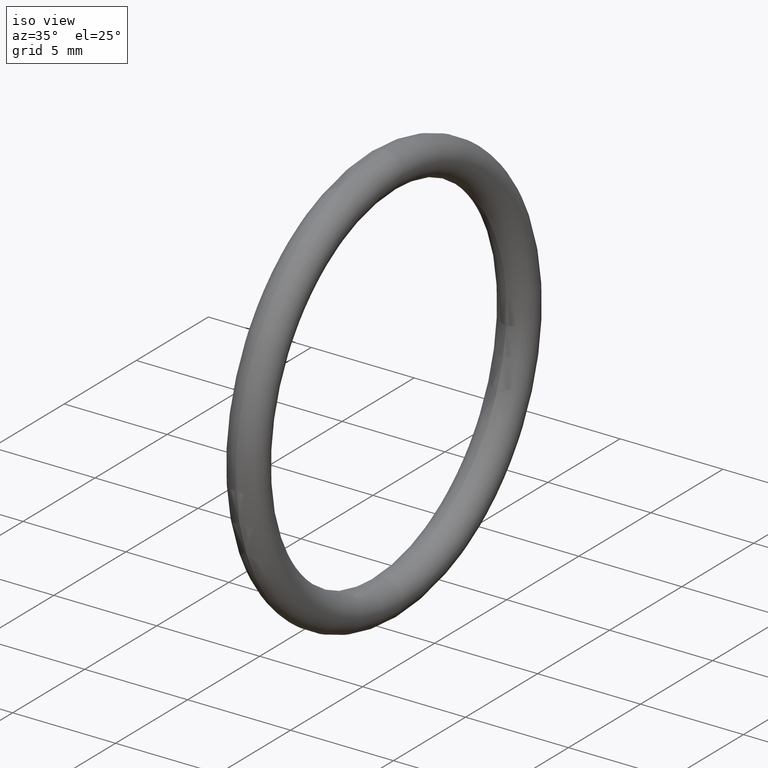
[diagram: clean part render]
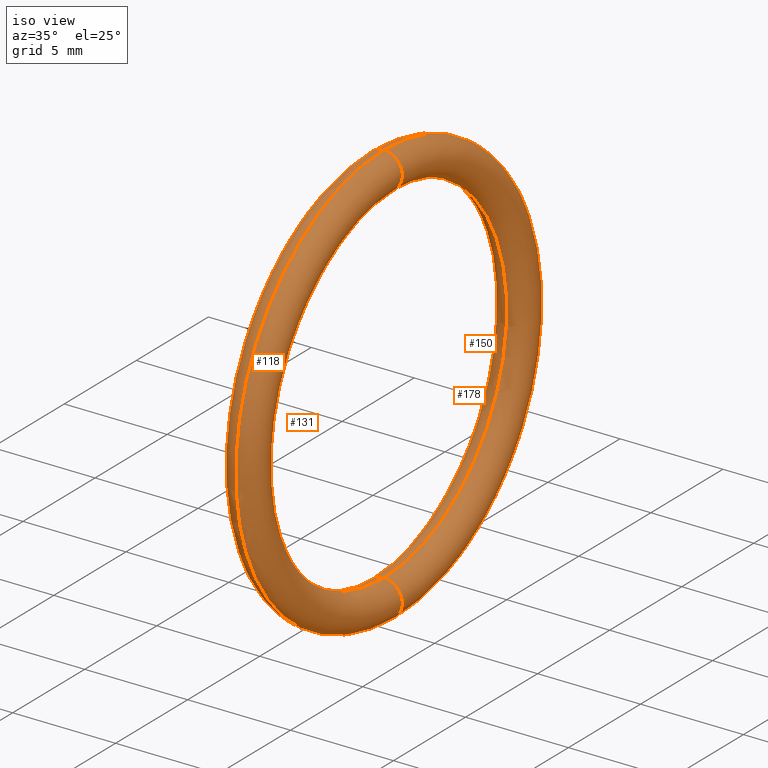
[diagram: same view with one multi-face feature highlighted, each face labeled with its STEP entity id]
A machine part, iso view. The highlighted faces form ONE feature: a constant-radius fillet chain: 4 tangent blend faces with common blend radius 0.889 mm. The faces share edges in the B-rep.
Their STEP definitions:
[1] entity #178 (Torus):
#12 = CARTESIAN_POINT ( 'NONE',  ( 0.1000000000000000500, 0.0000000000000000000, 0.0000000000000000000 ) ) ;
#17 = FACE_OUTER_BOUND ( 'NONE', #119, .T. ) ;
#55 = DIRECTION ( 'NONE',  ( 0.0000000000000000000, -1.224646799147352500E-016, 1.000000000000000000 ) ) ;
#56 = DIRECTION ( 'NONE',  ( 0.0000000000000000000, 1.000000000000000000, 1.224646799147353200E-016 ) ) ;
#57 = CARTESIAN_POINT ( 'NONE',  ( 0.1000000000000000500, 4.531193156845207300E-017, -0.3700000000000000000 ) ) ;
#58 = AXIS2_PLACEMENT_3D ( 'NONE', #57, #56, #55 ) ;
#59 = CIRCLE ( 'NONE', #58, 0.03500000000000003800 ) ;
#60 = CARTESIAN_POINT ( 'NONE',  ( 0.1000000000000000500, 0.0000000000000000000, 0.4050000000000000300 ) ) ;
#64 = CARTESIAN_POINT ( 'NONE',  ( 0.1000000000000000500, 0.0000000000000000000, 0.0000000000000000000 ) ) ;
#65 = AXIS2_PLACEMENT_3D ( 'NONE', #64, #78, #77 ) ;
#66 = CIRCLE ( 'NONE', #65, 0.4050000000000000300 ) ;
#77 = DIRECTION ( 'NONE',  ( 0.0000000000000000000, 0.0000000000000000000, 1.000000000000000000 ) ) ;
#78 = DIRECTION ( 'NONE',  ( -1.000000000000000000, 0.0000000000000000000, 0.0000000000000000000 ) ) ;
#86 = ORIENTED_EDGE ( 'NONE', *, *, #122, .T. ) ;
#91 = CARTESIAN_POINT ( 'NONE',  ( 0.1000000000000000500, 0.0000000000000000000, 0.3349999999999999600 ) ) ;
#92 = CARTESIAN_POINT ( 'NONE',  ( 0.1000000000000000500, 4.102566777143633400E-017, -0.3349999999999999600 ) ) ;
#93 = CARTESIAN_POINT ( 'NONE',  ( 0.1000000000000000500, 4.959819536546780600E-017, -0.4050000000000000300 ) ) ;
#94 = VERTEX_POINT ( 'NONE', #93 ) ;
#95 = VERTEX_POINT ( 'NONE', #92 ) ;
#96 = EDGE_CURVE ( 'NONE', #181, #120, #132, .T. ) ;
#110 = DIRECTION ( 'NONE',  ( 0.0000000000000000000, 0.0000000000000000000, -1.000000000000000000 ) ) ;
#111 = DIRECTION ( 'NONE',  ( 0.0000000000000000000, -1.000000000000000000, 0.0000000000000000000 ) ) ;
#112 = CARTESIAN_POINT ( 'NONE',  ( 0.1000000000000000500, 0.0000000000000000000, 0.3700000000000000000 ) ) ;
#113 = AXIS2_PLACEMENT_3D ( 'NONE', #112, #111, #110 ) ;
#116 = EDGE_CURVE ( 'NONE', #120, #95, #193, .T. ) ;
#117 = ORIENTED_EDGE ( 'NONE', *, *, #183, .T. ) ;
#119 = EDGE_LOOP ( 'NONE', ( #124, #86, #117, #152 ) ) ;
#120 = VERTEX_POINT ( 'NONE', #91 ) ;
#122 = EDGE_CURVE ( 'NONE', #181, #94, #66, .T. ) ;
#124 = ORIENTED_EDGE ( 'NONE', *, *, #96, .F. ) ;
#132 = CIRCLE ( 'NONE', #113, 0.03500000000000003800 ) ;
#137 = DIRECTION ( 'NONE',  ( 0.0000000000000000000, 0.0000000000000000000, 1.000000000000000000 ) ) ;
#138 = DIRECTION ( 'NONE',  ( -1.000000000000000000, 0.0000000000000000000, 0.0000000000000000000 ) ) ;
#139 = AXIS2_PLACEMENT_3D ( 'NONE', #12, #138, #137 ) ;
#140 = TOROIDAL_SURFACE ( 'NONE', #139, 0.3700000000000000000, 0.03500000000000000300 ) ;
#152 = ORIENTED_EDGE ( 'NONE', *, *, #116, .F. ) ;
#178 = ADVANCED_FACE ( 'NONE', ( #17 ), #140, .T. ) ;
#181 = VERTEX_POINT ( 'NONE', #60 ) ;
#183 = EDGE_CURVE ( 'NONE', #94, #95, #59, .T. ) ;
#189 = DIRECTION ( 'NONE',  ( 0.0000000000000000000, 0.0000000000000000000, 1.000000000000000000 ) ) ;
#190 = DIRECTION ( 'NONE',  ( -1.000000000000000000, 0.0000000000000000000, 0.0000000000000000000 ) ) ;
#191 = CARTESIAN_POINT ( 'NONE',  ( 0.1000000000000000500, 0.0000000000000000000, 0.0000000000000000000 ) ) ;
#192 = AXIS2_PLACEMENT_3D ( 'NONE', #191, #190, #189 ) ;
#193 = CIRCLE ( 'NONE', #192, 0.3349999999999999600 ) ;
[2] entity #150 (Torus):
#13 = DIRECTION ( 'NONE',  ( 0.0000000000000000000, -1.224646799147352500E-016, 1.000000000000000000 ) ) ;
#14 = DIRECTION ( 'NONE',  ( 0.0000000000000000000, 1.000000000000000000, 1.224646799147353200E-016 ) ) ;
#15 = CARTESIAN_POINT ( 'NONE',  ( 0.1000000000000000500, 4.531193156845207300E-017, -0.3700000000000000000 ) ) ;
#16 = AXIS2_PLACEMENT_3D ( 'NONE', #15, #14, #13 ) ;
#60 = CARTESIAN_POINT ( 'NONE',  ( 0.1000000000000000500, 0.0000000000000000000, 0.4050000000000000300 ) ) ;
#64 = CARTESIAN_POINT ( 'NONE',  ( 0.1000000000000000500, 0.0000000000000000000, 0.0000000000000000000 ) ) ;
#65 = AXIS2_PLACEMENT_3D ( 'NONE', #64, #78, #77 ) ;
#66 = CIRCLE ( 'NONE', #65, 0.4050000000000000300 ) ;
#68 = DIRECTION ( 'NONE',  ( 0.0000000000000000000, 0.0000000000000000000, -1.000000000000000000 ) ) ;
#69 = DIRECTION ( 'NONE',  ( 0.0000000000000000000, -1.000000000000000000, 0.0000000000000000000 ) ) ;
#70 = AXIS2_PLACEMENT_3D ( 'NONE', #145, #69, #68 ) ;
#71 = CIRCLE ( 'NONE', #70, 0.03500000000000003800 ) ;
#72 = CIRCLE ( 'NONE', #16, 0.03500000000000003800 ) ;
#75 = FACE_OUTER_BOUND ( 'NONE', #85, .T. ) ;
#77 = DIRECTION ( 'NONE',  ( 0.0000000000000000000, 0.0000000000000000000, 1.000000000000000000 ) ) ;
#78 = DIRECTION ( 'NONE',  ( -1.000000000000000000, 0.0000000000000000000, 0.0000000000000000000 ) ) ;
#85 = EDGE_LOOP ( 'NONE', ( #151, #155, #182, #157 ) ) ;
#91 = CARTESIAN_POINT ( 'NONE',  ( 0.1000000000000000500, 0.0000000000000000000, 0.3349999999999999600 ) ) ;
#92 = CARTESIAN_POINT ( 'NONE',  ( 0.1000000000000000500, 4.102566777143633400E-017, -0.3349999999999999600 ) ) ;
#93 = CARTESIAN_POINT ( 'NONE',  ( 0.1000000000000000500, 4.959819536546780600E-017, -0.4050000000000000300 ) ) ;
#94 = VERTEX_POINT ( 'NONE', #93 ) ;
#95 = VERTEX_POINT ( 'NONE', #92 ) ;
#97 = TOROIDAL_SURFACE ( 'NONE', #149, 0.3700000000000000000, 0.03500000000000000300 ) ;
#116 = EDGE_CURVE ( 'NONE', #120, #95, #193, .T. ) ;
#120 = VERTEX_POINT ( 'NONE', #91 ) ;
#122 = EDGE_CURVE ( 'NONE', #181, #94, #66, .T. ) ;
#145 = CARTESIAN_POINT ( 'NONE',  ( 0.1000000000000000500, 0.0000000000000000000, 0.3700000000000000000 ) ) ;
#146 = DIRECTION ( 'NONE',  ( 0.0000000000000000000, 0.0000000000000000000, 1.000000000000000000 ) ) ;
#147 = DIRECTION ( 'NONE',  ( -1.000000000000000000, 0.0000000000000000000, 0.0000000000000000000 ) ) ;
#148 = CARTESIAN_POINT ( 'NONE',  ( 0.1000000000000000500, 0.0000000000000000000, 0.0000000000000000000 ) ) ;
#149 = AXIS2_PLACEMENT_3D ( 'NONE', #148, #147, #146 ) ;
#150 = ADVANCED_FACE ( 'NONE', ( #75 ), #97, .T. ) ;
#151 = ORIENTED_EDGE ( 'NONE', *, *, #122, .F. ) ;
#155 = ORIENTED_EDGE ( 'NONE', *, *, #156, .F. ) ;
#156 = EDGE_CURVE ( 'NONE', #120, #181, #71, .T. ) ;
#157 = ORIENTED_EDGE ( 'NONE', *, *, #158, .T. ) ;
#158 = EDGE_CURVE ( 'NONE', #95, #94, #72, .T. ) ;
#181 = VERTEX_POINT ( 'NONE', #60 ) ;
#182 = ORIENTED_EDGE ( 'NONE', *, *, #116, .T. ) ;
#189 = DIRECTION ( 'NONE',  ( 0.0000000000000000000, 0.0000000000000000000, 1.000000000000000000 ) ) ;
#190 = DIRECTION ( 'NONE',  ( -1.000000000000000000, 0.0000000000000000000, 0.0000000000000000000 ) ) ;
#191 = CARTESIAN_POINT ( 'NONE',  ( 0.1000000000000000500, 0.0000000000000000000, 0.0000000000000000000 ) ) ;
#192 = AXIS2_PLACEMENT_3D ( 'NONE', #191, #190, #189 ) ;
#193 = CIRCLE ( 'NONE', #192, 0.3349999999999999600 ) ;
[3] entity #131 (Torus):
#13 = DIRECTION ( 'NONE',  ( 0.0000000000000000000, -1.224646799147352500E-016, 1.000000000000000000 ) ) ;
#14 = DIRECTION ( 'NONE',  ( 0.0000000000000000000, 1.000000000000000000, 1.224646799147353200E-016 ) ) ;
#15 = CARTESIAN_POINT ( 'NONE',  ( 0.1000000000000000500, 4.531193156845207300E-017, -0.3700000000000000000 ) ) ;
#16 = AXIS2_PLACEMENT_3D ( 'NONE', #15, #14, #13 ) ;
#60 = CARTESIAN_POINT ( 'NONE',  ( 0.1000000000000000500, 0.0000000000000000000, 0.4050000000000000300 ) ) ;
#61 = DIRECTION ( 'NONE',  ( 0.0000000000000000000, 0.0000000000000000000, 1.000000000000000000 ) ) ;
#62 = DIRECTION ( 'NONE',  ( -1.000000000000000000, 0.0000000000000000000, 0.0000000000000000000 ) ) ;
#63 = CARTESIAN_POINT ( 'NONE',  ( 0.1000000000000000500, 0.0000000000000000000, 0.0000000000000000000 ) ) ;
#67 = FACE_OUTER_BOUND ( 'NONE', #121, .T. ) ;
#68 = DIRECTION ( 'NONE',  ( 0.0000000000000000000, 0.0000000000000000000, -1.000000000000000000 ) ) ;
#69 = DIRECTION ( 'NONE',  ( 0.0000000000000000000, -1.000000000000000000, 0.0000000000000000000 ) ) ;
#70 = AXIS2_PLACEMENT_3D ( 'NONE', #145, #69, #68 ) ;
#71 = CIRCLE ( 'NONE', #70, 0.03500000000000003800 ) ;
#72 = CIRCLE ( 'NONE', #16, 0.03500000000000003800 ) ;
#73 = DIRECTION ( 'NONE',  ( 0.0000000000000000000, 0.0000000000000000000, 1.000000000000000000 ) ) ;
#74 = TOROIDAL_SURFACE ( 'NONE', #100, 0.3700000000000000000, 0.03500000000000000300 ) ;
#76 = CARTESIAN_POINT ( 'NONE',  ( 0.1000000000000000500, 0.0000000000000000000, 0.0000000000000000000 ) ) ;
#91 = CARTESIAN_POINT ( 'NONE',  ( 0.1000000000000000500, 0.0000000000000000000, 0.3349999999999999600 ) ) ;
#92 = CARTESIAN_POINT ( 'NONE',  ( 0.1000000000000000500, 4.102566777143633400E-017, -0.3349999999999999600 ) ) ;
#93 = CARTESIAN_POINT ( 'NONE',  ( 0.1000000000000000500, 4.959819536546780600E-017, -0.4050000000000000300 ) ) ;
#94 = VERTEX_POINT ( 'NONE', #93 ) ;
#95 = VERTEX_POINT ( 'NONE', #92 ) ;
#98 = DIRECTION ( 'NONE',  ( 0.0000000000000000000, 0.0000000000000000000, 1.000000000000000000 ) ) ;
#99 = DIRECTION ( 'NONE',  ( -1.000000000000000000, 0.0000000000000000000, 0.0000000000000000000 ) ) ;
#100 = AXIS2_PLACEMENT_3D ( 'NONE', #76, #99, #98 ) ;
#120 = VERTEX_POINT ( 'NONE', #91 ) ;
#121 = EDGE_LOOP ( 'NONE', ( #133, #134, #195, #196 ) ) ;
#131 = ADVANCED_FACE ( 'NONE', ( #67 ), #74, .T. ) ;
#133 = ORIENTED_EDGE ( 'NONE', *, *, #179, .F. ) ;
#134 = ORIENTED_EDGE ( 'NONE', *, *, #158, .F. ) ;
#135 = AXIS2_PLACEMENT_3D ( 'NONE', #63, #62, #61 ) ;
#136 = CIRCLE ( 'NONE', #135, 0.4050000000000000300 ) ;
#141 = DIRECTION ( 'NONE',  ( -1.000000000000000000, 0.0000000000000000000, 0.0000000000000000000 ) ) ;
#142 = CARTESIAN_POINT ( 'NONE',  ( 0.1000000000000000500, 0.0000000000000000000, 0.0000000000000000000 ) ) ;
#143 = AXIS2_PLACEMENT_3D ( 'NONE', #142, #141, #73 ) ;
#144 = CIRCLE ( 'NONE', #143, 0.3349999999999999600 ) ;
#145 = CARTESIAN_POINT ( 'NONE',  ( 0.1000000000000000500, 0.0000000000000000000, 0.3700000000000000000 ) ) ;
#153 = EDGE_CURVE ( 'NONE', #95, #120, #144, .T. ) ;
#156 = EDGE_CURVE ( 'NONE', #120, #181, #71, .T. ) ;
#158 = EDGE_CURVE ( 'NONE', #95, #94, #72, .T. ) ;
#179 = EDGE_CURVE ( 'NONE', #94, #181, #136, .T. ) ;
#181 = VERTEX_POINT ( 'NONE', #60 ) ;
#195 = ORIENTED_EDGE ( 'NONE', *, *, #153, .T. ) ;
#196 = ORIENTED_EDGE ( 'NONE', *, *, #156, .T. ) ;
[4] entity #118 (Torus):
#55 = DIRECTION ( 'NONE',  ( 0.0000000000000000000, -1.224646799147352500E-016, 1.000000000000000000 ) ) ;
#56 = DIRECTION ( 'NONE',  ( 0.0000000000000000000, 1.000000000000000000, 1.224646799147353200E-016 ) ) ;
#57 = CARTESIAN_POINT ( 'NONE',  ( 0.1000000000000000500, 4.531193156845207300E-017, -0.3700000000000000000 ) ) ;
#58 = AXIS2_PLACEMENT_3D ( 'NONE', #57, #56, #55 ) ;
#59 = CIRCLE ( 'NONE', #58, 0.03500000000000003800 ) ;
#60 = CARTESIAN_POINT ( 'NONE',  ( 0.1000000000000000500, 0.0000000000000000000, 0.4050000000000000300 ) ) ;
#61 = DIRECTION ( 'NONE',  ( 0.0000000000000000000, 0.0000000000000000000, 1.000000000000000000 ) ) ;
#62 = DIRECTION ( 'NONE',  ( -1.000000000000000000, 0.0000000000000000000, 0.0000000000000000000 ) ) ;
#63 = CARTESIAN_POINT ( 'NONE',  ( 0.1000000000000000500, 0.0000000000000000000, 0.0000000000000000000 ) ) ;
#73 = DIRECTION ( 'NONE',  ( 0.0000000000000000000, 0.0000000000000000000, 1.000000000000000000 ) ) ;
#87 = DIRECTION ( 'NONE',  ( 0.0000000000000000000, 0.0000000000000000000, 1.000000000000000000 ) ) ;
#88 = DIRECTION ( 'NONE',  ( -1.000000000000000000, 0.0000000000000000000, 0.0000000000000000000 ) ) ;
#89 = AXIS2_PLACEMENT_3D ( 'NONE', #188, #88, #87 ) ;
#90 = TOROIDAL_SURFACE ( 'NONE', #89, 0.3700000000000000000, 0.03500000000000000300 ) ;
#91 = CARTESIAN_POINT ( 'NONE',  ( 0.1000000000000000500, 0.0000000000000000000, 0.3349999999999999600 ) ) ;
#92 = CARTESIAN_POINT ( 'NONE',  ( 0.1000000000000000500, 4.102566777143633400E-017, -0.3349999999999999600 ) ) ;
#93 = CARTESIAN_POINT ( 'NONE',  ( 0.1000000000000000500, 4.959819536546780600E-017, -0.4050000000000000300 ) ) ;
#94 = VERTEX_POINT ( 'NONE', #93 ) ;
#95 = VERTEX_POINT ( 'NONE', #92 ) ;
#96 = EDGE_CURVE ( 'NONE', #181, #120, #132, .T. ) ;
#110 = DIRECTION ( 'NONE',  ( 0.0000000000000000000, 0.0000000000000000000, -1.000000000000000000 ) ) ;
#111 = DIRECTION ( 'NONE',  ( 0.0000000000000000000, -1.000000000000000000, 0.0000000000000000000 ) ) ;
#112 = CARTESIAN_POINT ( 'NONE',  ( 0.1000000000000000500, 0.0000000000000000000, 0.3700000000000000000 ) ) ;
#113 = AXIS2_PLACEMENT_3D ( 'NONE', #112, #111, #110 ) ;
#114 = ORIENTED_EDGE ( 'NONE', *, *, #96, .T. ) ;
#115 = ORIENTED_EDGE ( 'NONE', *, *, #179, .T. ) ;
#118 = ADVANCED_FACE ( 'NONE', ( #194 ), #90, .T. ) ;
#120 = VERTEX_POINT ( 'NONE', #91 ) ;
#123 = ORIENTED_EDGE ( 'NONE', *, *, #153, .F. ) ;
#125 = EDGE_LOOP ( 'NONE', ( #180, #115, #114, #123 ) ) ;
#132 = CIRCLE ( 'NONE', #113, 0.03500000000000003800 ) ;
#135 = AXIS2_PLACEMENT_3D ( 'NONE', #63, #62, #61 ) ;
#136 = CIRCLE ( 'NONE', #135, 0.4050000000000000300 ) ;
#141 = DIRECTION ( 'NONE',  ( -1.000000000000000000, 0.0000000000000000000, 0.0000000000000000000 ) ) ;
#142 = CARTESIAN_POINT ( 'NONE',  ( 0.1000000000000000500, 0.0000000000000000000, 0.0000000000000000000 ) ) ;
#143 = AXIS2_PLACEMENT_3D ( 'NONE', #142, #141, #73 ) ;
#144 = CIRCLE ( 'NONE', #143, 0.3349999999999999600 ) ;
#153 = EDGE_CURVE ( 'NONE', #95, #120, #144, .T. ) ;
#179 = EDGE_CURVE ( 'NONE', #94, #181, #136, .T. ) ;
#180 = ORIENTED_EDGE ( 'NONE', *, *, #183, .F. ) ;
#181 = VERTEX_POINT ( 'NONE', #60 ) ;
#183 = EDGE_CURVE ( 'NONE', #94, #95, #59, .T. ) ;
#188 = CARTESIAN_POINT ( 'NONE',  ( 0.1000000000000000500, 0.0000000000000000000, 0.0000000000000000000 ) ) ;
#194 = FACE_OUTER_BOUND ( 'NONE', #125, .T. ) ;